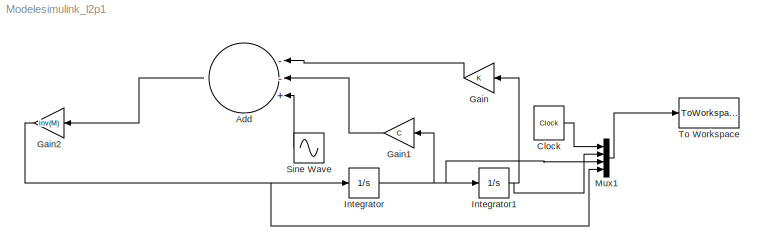
MODEL Modelesimulink_l2p1
KIND model
BLOCK [Sum] Add
  InputSameDT = off
  Inputs = --+
  OutDataTypeStr = Inherit: Inherit via internal rule
  Ports = [3, 1]
  SID = 6
  SaturateOnIntegerOverflow = off
BLOCK [Clock] Clock
  SID = 11
BLOCK [Gain] Gain
  Gain = K
  Multiplication = Matrix(K*u) (u vector)
  OutDataTypeStr = Inherit: Inherit via internal rule
  ParamDataTypeStr = Inherit: Inherit via internal rule
  SID = 4
  SaturateOnIntegerOverflow = off
BLOCK [Gain] Gain1
  Gain = C
  Multiplication = Matrix(K*u) (u vector)
  OutDataTypeStr = Inherit: Inherit via internal rule
  ParamDataTypeStr = Inherit: Inherit via internal rule
  SID = 5
  SaturateOnIntegerOverflow = off
BLOCK [Gain] Gain2
  Gain = inv(M)
  Multiplication = Matrix(K*u) (u vector)
  OutDataTypeStr = Inherit: Inherit via internal rule
  ParamDataTypeStr = Inherit: Inherit via internal rule
  SID = 18
  SaturateOnIntegerOverflow = off
BLOCK [Integrator] Integrator
  Ports = [1, 1]
  SID = 1
BLOCK [Integrator] Integrator1
  Ports = [1, 1]
  SID = 3
BLOCK [Mux] Mux1
  DisplayOption = bar
  Ports = [4, 1]
  SID = 12
BLOCK [Sin] Sine Wave
  Amplitude = F
  Frequency = wombo
  Phase = phi
  Ports = [0, 1]
  SID = 13
  SampleTime = 0
BLOCK [ToWorkspace] To Workspace
  MaxDataPoints = inf
  Ports = [1]
  SID = 10
  SampleTime = -1
  VariableName = Deplacement
LINE Add:1 -> Gain2:1
LINE Clock:1 -> Mux1:1
LINE Gain1:1 -> Add:2
NET Gain2:1 -> Integrator:1, Mux1:4
LINE Gain:1 -> Add:1
NET Integrator1:1 -> Gain:1, Mux1:2
NET Integrator:1 -> Gain1:1, Integrator1:1, Mux1:3
LINE Mux1:1 -> To Workspace:1
LINE Sine Wave:1 -> Add:3
note: NET lines group one-source signal fan-out (src -> all destinations, sorted); 1:1 wires keep LINE
